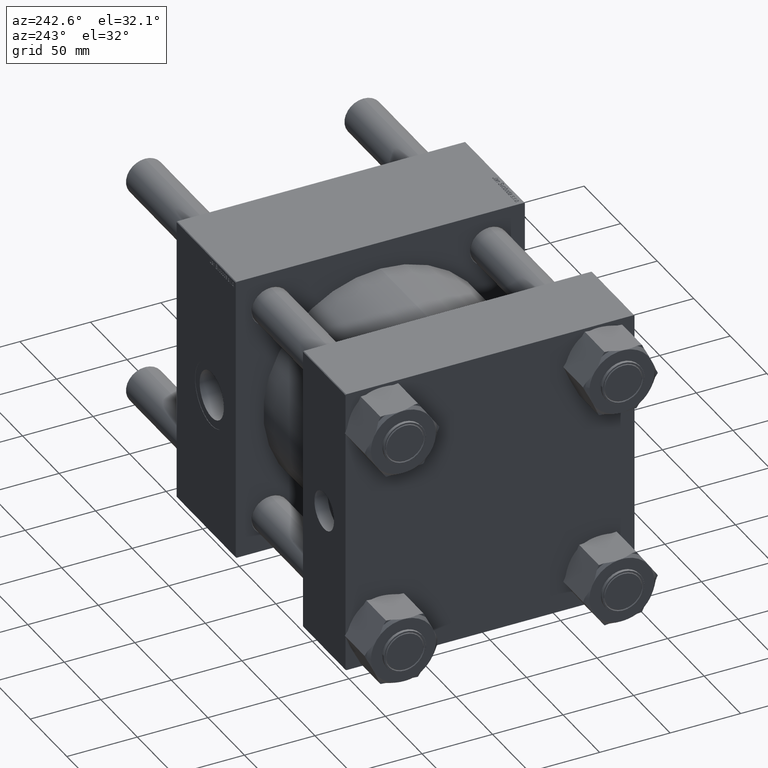
[diagram: clean part render]
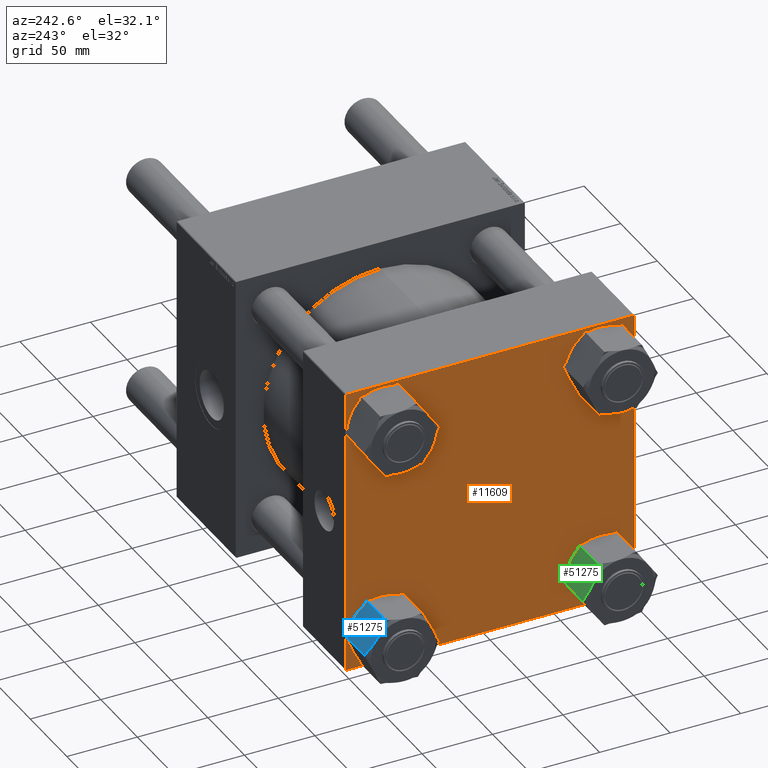
[diagram: same view with three faces highlighted in distinct colors, each labeled with its STEP entity id]
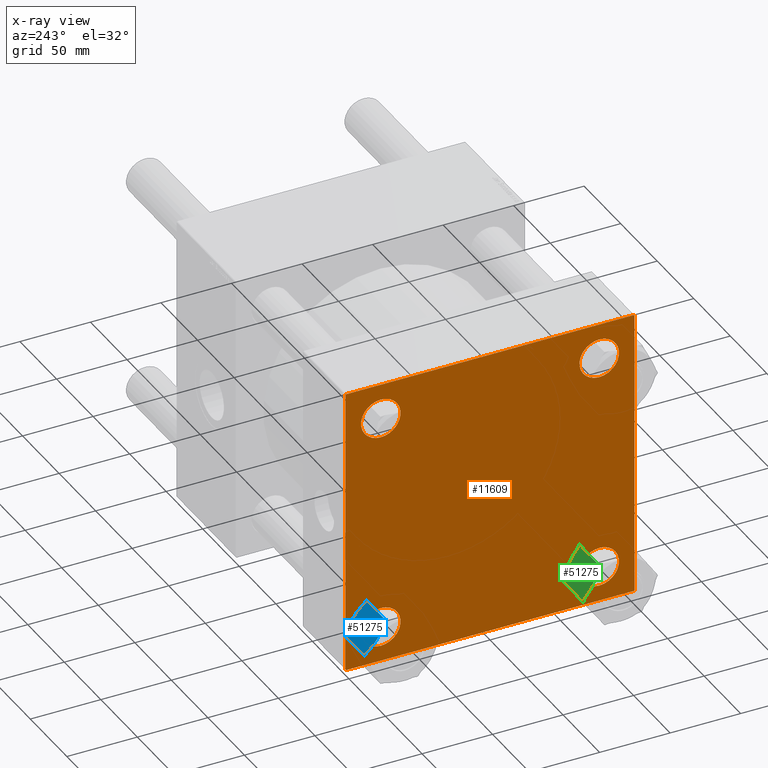
[diagram: x-ray of the same camera — body ghosted, the three highlighted faces saturated]
A machine part, auxiliary view with three faces highlighted in distinct colors.
The next image is the same camera in x-ray (body ghosted, the three faces saturated) — at least one of them is partly hidden behind the body in this view.
Their STEP definitions:

[orange] entity #11609 — the highlighted planar face has unit normal (-1, 0, 0).
#182 = EDGE_CURVE ( 'NONE', #53099, #46221, #29675, .T. ) ;
#638 = LINE ( 'NONE', #9306, #45542 ) ;
#746 = FACE_BOUND ( 'NONE', #27921, .T. ) ;
#882 = ORIENTED_EDGE ( 'NONE', *, *, #42398, .T. ) ;
#1178 = VERTEX_POINT ( 'NONE', #12070 ) ;
#1571 = DIRECTION ( 'NONE',  ( 0.000000000000000000, -1.000000000000000000, -1.353930517835556973E-16 ) ) ;
#1707 = CARTESIAN_POINT ( 'NONE',  ( 0.000000000000000000, 102.2500000000000000, -102.2500000000000000 ) ) ;
#1816 = FACE_BOUND ( 'NONE', #17439, .T. ) ;
#1959 = CARTESIAN_POINT ( 'NONE',  ( 0.000000000000000000, -102.4999999999999716, 102.5000000000000000 ) ) ;
#2163 = CARTESIAN_POINT ( 'NONE',  ( 0.000000000000000000, 77.44999999999998863, 77.45000000000001705 ) ) ;
#2212 = CIRCLE ( 'NONE', #15135, 14.00000000000012434 ) ;
#3226 = AXIS2_PLACEMENT_3D ( 'NONE', #46696, #46407, #15119 ) ;
#3310 = DIRECTION ( 'NONE',  ( 0.000000000000000000, 0.7071067811865474617, -0.7071067811865474617 ) ) ;
#3364 = CARTESIAN_POINT ( 'NONE',  ( 0.000000000000000000, 102.5000000000000284, 102.5000000000000284 ) ) ;
#3365 = VECTOR ( 'NONE', #19329, 1000.000000000000000 ) ;
#3877 = AXIS2_PLACEMENT_3D ( 'NONE', #31634, #32492, #53918 ) ;
#4187 = EDGE_CURVE ( 'NONE', #11656, #54490, #638, .T. ) ;
#4556 = EDGE_CURVE ( 'NONE', #35947, #8045, #49264, .T. ) ;
#4952 = DIRECTION ( 'NONE',  ( 0.000000000000000000, 0.000000000000000000, 1.000000000000000000 ) ) ;
#4974 = CIRCLE ( 'NONE', #36420, 14.00000000000012434 ) ;
#4982 = DIRECTION ( 'NONE',  ( 0.000000000000000000, -0.7071067811865474617, 0.7071067811865474617 ) ) ;
#5315 = VECTOR ( 'NONE', #1571, 1000.000000000000000 ) ;
#5443 = CARTESIAN_POINT ( 'NONE',  ( 0.000000000000000000, -77.44999999999996021, -63.44999999999991047 ) ) ;
#5625 = VECTOR ( 'NONE', #33362, 1000.000000000000114 ) ;
#6137 = AXIS2_PLACEMENT_3D ( 'NONE', #37854, #51731, #56051 ) ;
#6317 = DIRECTION ( 'NONE',  ( -0.000000000000000000, -0.7071067811865474617, -0.7071067811865474617 ) ) ;
#6920 = CIRCLE ( 'NONE', #12501, 14.00000000000012434 ) ;
#6991 = VERTEX_POINT ( 'NONE', #43489 ) ;
#7213 = EDGE_CURVE ( 'NONE', #46221, #45371, #42783, .T. ) ;
#7302 = EDGE_CURVE ( 'NONE', #43709, #15542, #4974, .T. ) ;
#7848 = EDGE_LOOP ( 'NONE', ( #37066, #44726 ) ) ;
#7965 = EDGE_CURVE ( 'NONE', #6991, #43921, #2212, .T. ) ;
#8045 = VERTEX_POINT ( 'NONE', #42017 ) ;
#8679 = CARTESIAN_POINT ( 'NONE',  ( 0.000000000000000000, 77.44999999999998863, -63.44999999999989626 ) ) ;
#9090 = ORIENTED_EDGE ( 'NONE', *, *, #182, .T. ) ;
#9306 = CARTESIAN_POINT ( 'NONE',  ( 0.000000000000000000, -102.2499999999999716, -102.2499999999999716 ) ) ;
#9419 = DIRECTION ( 'NONE',  ( 1.000000000000000000, -0.000000000000000000, -0.000000000000000000 ) ) ;
#9853 = CARTESIAN_POINT ( 'NONE',  ( 0.000000000000000000, -77.44999999999996021, -77.45000000000003126 ) ) ;
#10045 = ORIENTED_EDGE ( 'NONE', *, *, #17654, .F. ) ;
#11257 = ORIENTED_EDGE ( 'NONE', *, *, #7302, .T. ) ;
#11404 = VECTOR ( 'NONE', #21029, 1000.000000000000000 ) ;
#11609 = ADVANCED_FACE ( 'NONE', ( #19469, #746, #1816, #42355, #18118 ), #37154, .T. ) ;
#11656 = VERTEX_POINT ( 'NONE', #36091 ) ;
#11982 = VERTEX_POINT ( 'NONE', #27812 ) ;
#12070 = CARTESIAN_POINT ( 'NONE',  ( 0.000000000000000000, 102.0000000000000142, -102.4999999999999716 ) ) ;
#12302 = CARTESIAN_POINT ( 'NONE',  ( 0.000000000000000000, 102.5000000000000284, -101.9999999999999147 ) ) ;
#12501 = AXIS2_PLACEMENT_3D ( 'NONE', #2163, #41276, #41845 ) ;
#12967 = ORIENTED_EDGE ( 'NONE', *, *, #7965, .T. ) ;
#13487 = DIRECTION ( 'NONE',  ( 0.000000000000000000, 0.000000000000000000, 1.000000000000000000 ) ) ;
#14775 = EDGE_LOOP ( 'NONE', ( #34805, #26784, #882, #36635, #10045, #31569, #21947, #9090 ) ) ;
#15079 = EDGE_CURVE ( 'NONE', #43921, #6991, #18940, .T. ) ;
#15119 = DIRECTION ( 'NONE',  ( 0.000000000000000000, 0.000000000000000000, 1.000000000000000000 ) ) ;
#15135 = AXIS2_PLACEMENT_3D ( 'NONE', #9853, #23765, #4952 ) ;
#15450 = CARTESIAN_POINT ( 'NONE',  ( 0.000000000000000000, 77.44999999999998863, 63.44999999999989626 ) ) ;
#15542 = VERTEX_POINT ( 'NONE', #8679 ) ;
#15833 = CARTESIAN_POINT ( 'NONE',  ( 0.000000000000000000, 77.44999999999998863, 91.45000000000014495 ) ) ;
#16849 = CIRCLE ( 'NONE', #3877, 14.00000000000012434 ) ;
#17110 = EDGE_CURVE ( 'NONE', #8045, #35947, #57020, .T. ) ;
#17439 = EDGE_LOOP ( 'NONE', ( #24869, #11257 ) ) ;
#17654 = EDGE_CURVE ( 'NONE', #27236, #54490, #54648, .T. ) ;
#18118 = FACE_OUTER_BOUND ( 'NONE', #14775, .T. ) ;
#18438 = CARTESIAN_POINT ( 'NONE',  ( 0.000000000000000000, -102.4999999999999716, 102.0000000000000000 ) ) ;
#18490 = VECTOR ( 'NONE', #6317, 1000.000000000000114 ) ;
#18653 = LINE ( 'NONE', #41252, #5315 ) ;
#18940 = CIRCLE ( 'NONE', #19853, 14.00000000000012434 ) ;
#18947 = DIRECTION ( 'NONE',  ( 1.000000000000000000, -0.000000000000000000, -0.000000000000000000 ) ) ;
#19329 = DIRECTION ( 'NONE',  ( 0.000000000000000000, -1.353930517835556973E-16, -1.000000000000000000 ) ) ;
#19424 = DIRECTION ( 'NONE',  ( 1.000000000000000000, -0.000000000000000000, -0.000000000000000000 ) ) ;
#19469 = FACE_BOUND ( 'NONE', #47831, .T. ) ;
#19853 = AXIS2_PLACEMENT_3D ( 'NONE', #53988, #18947, #36638 ) ;
#21029 = DIRECTION ( 'NONE',  ( 0.000000000000000000, 0.000000000000000000, -1.000000000000000000 ) ) ;
#21378 = EDGE_CURVE ( 'NONE', #55271, #48485, #6920, .T. ) ;
#21947 = ORIENTED_EDGE ( 'NONE', *, *, #27585, .F. ) ;
#22103 = ORIENTED_EDGE ( 'NONE', *, *, #17110, .T. ) ;
#23765 = DIRECTION ( 'NONE',  ( 1.000000000000000000, -0.000000000000000000, -0.000000000000000000 ) ) ;
#24299 = DIRECTION ( 'NONE',  ( 0.000000000000000000, 0.000000000000000000, 1.000000000000000000 ) ) ;
#24392 = CARTESIAN_POINT ( 'NONE',  ( 0.000000000000000000, -102.2499999999999716, 102.2499999999999716 ) ) ;
#24869 = ORIENTED_EDGE ( 'NONE', *, *, #55485, .T. ) ;
#25230 = AXIS2_PLACEMENT_3D ( 'NONE', #32706, #50651, #24299 ) ;
#25332 = CARTESIAN_POINT ( 'NONE',  ( 0.000000000000000000, 102.2500000000000142, 102.2500000000000142 ) ) ;
#26047 = CARTESIAN_POINT ( 'NONE',  ( 0.000000000000000000, 102.0000000000000142, 102.5000000000000284 ) ) ;
#26709 = CARTESIAN_POINT ( 'NONE',  ( 0.000000000000000000, -102.5000000000000000, -101.9999999999998863 ) ) ;
#26784 = ORIENTED_EDGE ( 'NONE', *, *, #39746, .T. ) ;
#27236 = VERTEX_POINT ( 'NONE', #18438 ) ;
#27585 = EDGE_CURVE ( 'NONE', #53099, #11982, #18653, .T. ) ;
#27812 = CARTESIAN_POINT ( 'NONE',  ( 0.000000000000000000, -101.9999999999999147, 102.5000000000000000 ) ) ;
#27921 = EDGE_LOOP ( 'NONE', ( #37817, #12967 ) ) ;
#29675 = LINE ( 'NONE', #25332, #48228 ) ;
#29956 = ORIENTED_EDGE ( 'NONE', *, *, #4556, .T. ) ;
#31258 = CARTESIAN_POINT ( 'NONE',  ( 0.000000000000000000, 102.5000000000000284, -102.4999999999999716 ) ) ;
#31569 = ORIENTED_EDGE ( 'NONE', *, *, #48057, .T. ) ;
#31634 = CARTESIAN_POINT ( 'NONE',  ( 0.000000000000000000, 77.44999999999998863, -77.45000000000001705 ) ) ;
#32492 = DIRECTION ( 'NONE',  ( 1.000000000000000000, -0.000000000000000000, -0.000000000000000000 ) ) ;
#32706 = CARTESIAN_POINT ( 'NONE',  ( 0.000000000000000000, -77.44999999999996021, 77.45000000000003126 ) ) ;
#33362 = DIRECTION ( 'NONE',  ( -0.000000000000000000, 0.7071067811865474617, 0.7071067811865474617 ) ) ;
#34805 = ORIENTED_EDGE ( 'NONE', *, *, #7213, .T. ) ;
#35947 = VERTEX_POINT ( 'NONE', #39634 ) ;
#36091 = CARTESIAN_POINT ( 'NONE',  ( 0.000000000000000000, -101.9999999999999432, -102.5000000000000000 ) ) ;
#36420 = AXIS2_PLACEMENT_3D ( 'NONE', #53739, #9419, #13487 ) ;
#36635 = ORIENTED_EDGE ( 'NONE', *, *, #4187, .T. ) ;
#36638 = DIRECTION ( 'NONE',  ( 0.000000000000000000, 0.000000000000000000, 1.000000000000000000 ) ) ;
#36769 = LINE ( 'NONE', #31258, #41699 ) ;
#36837 = CARTESIAN_POINT ( 'NONE',  ( 0.000000000000000000, 77.44999999999998863, 77.45000000000001705 ) ) ;
#37066 = ORIENTED_EDGE ( 'NONE', *, *, #52308, .T. ) ;
#37154 = PLANE ( 'NONE',  #3226 ) ;
#37817 = ORIENTED_EDGE ( 'NONE', *, *, #15079, .T. ) ;
#37854 = CARTESIAN_POINT ( 'NONE',  ( 0.000000000000000000, -77.44999999999996021, 77.45000000000003126 ) ) ;
#39634 = CARTESIAN_POINT ( 'NONE',  ( 0.000000000000000000, -77.44999999999996021, 63.44999999999991047 ) ) ;
#39746 = EDGE_CURVE ( 'NONE', #45371, #1178, #41389, .T. ) ;
#40878 = DIRECTION ( 'NONE',  ( 0.000000000000000000, 0.000000000000000000, 1.000000000000000000 ) ) ;
#40950 = CIRCLE ( 'NONE', #52012, 14.00000000000012434 ) ;
#41252 = CARTESIAN_POINT ( 'NONE',  ( 0.000000000000000000, 102.5000000000000284, 102.5000000000000284 ) ) ;
#41276 = DIRECTION ( 'NONE',  ( 1.000000000000000000, -0.000000000000000000, -0.000000000000000000 ) ) ;
#41389 = LINE ( 'NONE', #1707, #18490 ) ;
#41699 = VECTOR ( 'NONE', #48924, 1000.000000000000000 ) ;
#41845 = DIRECTION ( 'NONE',  ( 0.000000000000000000, 0.000000000000000000, 1.000000000000000000 ) ) ;
#42017 = CARTESIAN_POINT ( 'NONE',  ( 0.000000000000000000, -77.44999999999996021, 91.45000000000015916 ) ) ;
#42355 = FACE_BOUND ( 'NONE', #7848, .T. ) ;
#42398 = EDGE_CURVE ( 'NONE', #1178, #11656, #36769, .T. ) ;
#42629 = LINE ( 'NONE', #24392, #5625 ) ;
#42783 = LINE ( 'NONE', #3364, #11404 ) ;
#43489 = CARTESIAN_POINT ( 'NONE',  ( 0.000000000000000000, -77.44999999999996021, -91.45000000000015916 ) ) ;
#43709 = VERTEX_POINT ( 'NONE', #45482 ) ;
#43921 = VERTEX_POINT ( 'NONE', #5443 ) ;
#44471 = CARTESIAN_POINT ( 'NONE',  ( 0.000000000000000000, 102.5000000000000284, 102.0000000000000142 ) ) ;
#44726 = ORIENTED_EDGE ( 'NONE', *, *, #21378, .T. ) ;
#45371 = VERTEX_POINT ( 'NONE', #12302 ) ;
#45482 = CARTESIAN_POINT ( 'NONE',  ( 0.000000000000000000, 77.44999999999998863, -91.45000000000014495 ) ) ;
#45542 = VECTOR ( 'NONE', #4982, 1000.000000000000114 ) ;
#46221 = VERTEX_POINT ( 'NONE', #44471 ) ;
#46407 = DIRECTION ( 'NONE',  ( -1.000000000000000000, 0.000000000000000000, 0.000000000000000000 ) ) ;
#46696 = CARTESIAN_POINT ( 'NONE',  ( 0.000000000000000000, 0.000000000000000000, 0.000000000000000000 ) ) ;
#47831 = EDGE_LOOP ( 'NONE', ( #22103, #29956 ) ) ;
#48057 = EDGE_CURVE ( 'NONE', #27236, #11982, #42629, .T. ) ;
#48228 = VECTOR ( 'NONE', #3310, 1000.000000000000114 ) ;
#48485 = VERTEX_POINT ( 'NONE', #15833 ) ;
#48924 = DIRECTION ( 'NONE',  ( 0.000000000000000000, -1.000000000000000000, -1.353930517835556727E-16 ) ) ;
#49264 = CIRCLE ( 'NONE', #25230, 14.00000000000012434 ) ;
#50651 = DIRECTION ( 'NONE',  ( 1.000000000000000000, -0.000000000000000000, -0.000000000000000000 ) ) ;
#51731 = DIRECTION ( 'NONE',  ( 1.000000000000000000, -0.000000000000000000, -0.000000000000000000 ) ) ;
#52012 = AXIS2_PLACEMENT_3D ( 'NONE', #36837, #19424, #40878 ) ;
#52308 = EDGE_CURVE ( 'NONE', #48485, #55271, #40950, .T. ) ;
#53099 = VERTEX_POINT ( 'NONE', #26047 ) ;
#53739 = CARTESIAN_POINT ( 'NONE',  ( 0.000000000000000000, 77.44999999999998863, -77.45000000000001705 ) ) ;
#53918 = DIRECTION ( 'NONE',  ( 0.000000000000000000, 0.000000000000000000, 1.000000000000000000 ) ) ;
#53988 = CARTESIAN_POINT ( 'NONE',  ( 0.000000000000000000, -77.44999999999996021, -77.45000000000003126 ) ) ;
#54490 = VERTEX_POINT ( 'NONE', #26709 ) ;
#54648 = LINE ( 'NONE', #1959, #3365 ) ;
#55271 = VERTEX_POINT ( 'NONE', #15450 ) ;
#55485 = EDGE_CURVE ( 'NONE', #15542, #43709, #16849, .T. ) ;
#56051 = DIRECTION ( 'NONE',  ( 0.000000000000000000, 0.000000000000000000, 1.000000000000000000 ) ) ;
#57020 = CIRCLE ( 'NONE', #6137, 14.00000000000012434 ) ;

[blue] entity #51275 — the highlighted planar face has unit normal (-0, -0.8198, -0.5726).
#153 = LINE ( 'NONE', #8552, #7084 ) ;
#231 = ORIENTED_EDGE ( 'NONE', *, *, #31329, .F. ) ;
#1495 = LINE ( 'NONE', #32195, #11988 ) ;
#2269 = VECTOR ( 'NONE', #38551, 1000.000000000000000 ) ;
#2427 = ORIENTED_EDGE ( 'NONE', *, *, #47066, .F. ) ;
#3409 = CARTESIAN_POINT ( 'NONE',  ( -24.86944657925254987, 3.032047466098102273, -28.99999999999999645 ) ) ;
#3425 = CARTESIAN_POINT ( 'NONE',  ( -15.06055342074746939, 20.02154878264365934, -2.000000000000000000 ) ) ;
#4291 = CARTESIAN_POINT ( 'NONE',  ( -18.28415441059626545, 14.43810808489622843, -0.2290702059543288927 ) ) ;
#4368 = VERTEX_POINT ( 'NONE', #55897 ) ;
#7084 = VECTOR ( 'NONE', #43337, 1000.000000000000000 ) ;
#7114 = VECTOR ( 'NONE', #38873, 1000.000000000000000 ) ;
#8059 = ORIENTED_EDGE ( 'NONE', *, *, #40260, .F. ) ;
#8552 = CARTESIAN_POINT ( 'NONE',  ( -13.30999999999999872, 23.05359624874177271, -31.00000000000000000 ) ) ;
#8721 = CARTESIAN_POINT ( 'NONE',  ( -19.96500000000001052, 11.52679812437088636, -31.00000000000000000 ) ) ;
#8726 = VECTOR ( 'NONE', #16842, 1000.000000000000000 ) ;
#9002 = CARTESIAN_POINT ( 'NONE',  ( -16.65815586667607207, 17.25442017599902655, -30.08229428973084651 ) ) ;
#9265 = ORIENTED_EDGE ( 'NONE', *, *, #51816, .F. ) ;
#9367 = ORIENTED_EDGE ( 'NONE', *, *, #38356, .F. ) ;
#9415 = VERTEX_POINT ( 'NONE', #39953 ) ;
#10190 = CARTESIAN_POINT ( 'NONE',  ( -24.86944657925254987, 3.032047466098102273, -28.99999999999999645 ) ) ;
#10730 = VERTEX_POINT ( 'NONE', #21581 ) ;
#10811 = EDGE_CURVE ( 'NONE', #34437, #33070, #48134, .T. ) ;
#10819 = B_SPLINE_CURVE_WITH_KNOTS ( 'NONE', 3,
 ( #3409, #29490, #47159, #43107, #50924, #38753, #41969, #46308, #37619, #55542 ),
 .UNSPECIFIED., .F., .F.,
 ( 4, 2, 2, 2, 4 ),
 ( 5.412492187535934886E-07, 0.005006446827219874531, 0.007509399616220437459, 0.008760876010720718490, 0.01001235240522100126 ),
 .UNSPECIFIED. ) ;
#11988 = VECTOR ( 'NONE', #49855, 1000.000000000000000 ) ;
#14182 = CARTESIAN_POINT ( 'NONE',  ( -21.64175213325208347, 8.622578237878784080, -0.1878618656617418170 ) ) ;
#16816 = AXIS2_PLACEMENT_3D ( 'NONE', #33961, #20905, #38587 ) ;
#16842 = DIRECTION ( 'NONE',  ( -0.000000000000000000, -0.000000000000000000, 1.000000000000000000 ) ) ;
#17161 = EDGE_CURVE ( 'NONE', #26188, #33555, #153, .T. ) ;
#17288 = CARTESIAN_POINT ( 'NONE',  ( -13.30999999999999872, 23.05359624874177271, -2.000000000000001776 ) ) ;
#17599 = CARTESIAN_POINT ( 'NONE',  ( -16.64769565855988276, 17.27253778791400052, -0.8826024950750006592 ) ) ;
#18243 = CARTESIAN_POINT ( 'NONE',  ( -19.96500000000001407, 11.52679812437088813, 0.000000000000000000 ) ) ;
#18548 = EDGE_CURVE ( 'NONE', #10730, #26188, #55056, .T. ) ;
#18828 = EDGE_CURVE ( 'NONE', #52322, #31118, #23313, .T. ) ;
#19445 = B_SPLINE_CURVE_WITH_KNOTS ( 'NONE', 3,
 ( #8721, #30468, #48133, #44086, #9002, #34814, #39154, #26689 ),
 .UNSPECIFIED., .F., .F.,
 ( 4, 2, 2, 4 ),
 ( 0.01001235240522100126, 0.01501505178013392769, 0.01751640146759038397, 0.02001775115504684371 ),
 .UNSPECIFIED. ) ;
#20873 = ORIENTED_EDGE ( 'NONE', *, *, #17161, .F. ) ;
#20905 = DIRECTION ( 'NONE',  ( 0.8660254037844385966, -0.5000000000000001110, 0.000000000000000000 ) ) ;
#20910 = LINE ( 'NONE', #21199, #7114 ) ;
#21199 = CARTESIAN_POINT ( 'NONE',  ( -26.62000000000000455, 1.322753825639812332E-14, -28.99999999999999645 ) ) ;
#21581 = CARTESIAN_POINT ( 'NONE',  ( -15.06055342074746584, 20.02154878264366644, -28.99999999999999645 ) ) ;
#22129 = CARTESIAN_POINT ( 'NONE',  ( -24.86944657925254631, 3.032047466098111155, -2.000000000000000000 ) ) ;
#23313 = B_SPLINE_CURVE_WITH_KNOTS ( 'NONE', 3,
 ( #18243, #40558, #14182, #36214, #31867, #49534, #27514, #45194 ),
 .UNSPECIFIED., .F., .F.,
 ( 4, 2, 2, 4 ),
 ( 0.01001235240522100993, 0.01501505178013393463, 0.01751640146759039091, 0.02001775115504685065 ),
 .UNSPECIFIED. ) ;
#24343 = CARTESIAN_POINT ( 'NONE',  ( -26.62000000000000455, 1.322753825639812332E-14, -2.000000000000001776 ) ) ;
#24778 = LINE ( 'NONE', #55168, #47351 ) ;
#24975 = FACE_OUTER_BOUND ( 'NONE', #36950, .T. ) ;
#26188 = VERTEX_POINT ( 'NONE', #36533 ) ;
#26596 = CARTESIAN_POINT ( 'NONE',  ( -19.96500000000001407, 11.52679812437088813, 0.000000000000000000 ) ) ;
#26689 = CARTESIAN_POINT ( 'NONE',  ( -15.06055342074746584, 20.02154878264366644, -28.99999999999999645 ) ) ;
#27514 = CARTESIAN_POINT ( 'NONE',  ( -24.47560625466582707, 3.714198918351719225, -1.691610128380186540 ) ) ;
#29490 = CARTESIAN_POINT ( 'NONE',  ( -24.08202856253745594, 4.395895477843756893, -29.61657409342405600 ) ) ;
#30308 = ORIENTED_EDGE ( 'NONE', *, *, #18828, .F. ) ;
#30468 = CARTESIAN_POINT ( 'NONE',  ( -19.11853726258805963, 12.99291459228222045, -31.00000000000002487 ) ) ;
#31118 = VERTEX_POINT ( 'NONE', #22129 ) ;
#31329 = EDGE_CURVE ( 'NONE', #34437, #47864, #20910, .T. ) ;
#31867 = CARTESIAN_POINT ( 'NONE',  ( -23.27184413332395252, 5.799176072742751487, -0.9177057102691522639 ) ) ;
#32195 = CARTESIAN_POINT ( 'NONE',  ( -26.62000000000000455, 1.322753825639812332E-14, -2.000000000000001776 ) ) ;
#32844 = EDGE_CURVE ( 'NONE', #4368, #10730, #19445, .T. ) ;
#33070 = VERTEX_POINT ( 'NONE', #24343 ) ;
#33370 = ORIENTED_EDGE ( 'NONE', *, *, #10811, .T. ) ;
#33555 = VERTEX_POINT ( 'NONE', #17288 ) ;
#33961 = CARTESIAN_POINT ( 'NONE',  ( -26.62000000000000455, 1.322753825639812332E-14, -31.00000000000000000 ) ) ;
#34437 = VERTEX_POINT ( 'NONE', #55809 ) ;
#34814 = CARTESIAN_POINT ( 'NONE',  ( -15.85409835805183931, 18.64708863314343645, -29.58973526236486862 ) ) ;
#36214 = CARTESIAN_POINT ( 'NONE',  ( -22.86684697778494524, 6.500651723057158549, -0.7059057375046260407 ) ) ;
#36533 = CARTESIAN_POINT ( 'NONE',  ( -13.30999999999999872, 23.05359624874177271, -28.99999999999999645 ) ) ;
#36950 = EDGE_LOOP ( 'NONE', ( #231, #33370, #9265, #30308, #2427, #8059, #20873, #51346, #51406, #9367 ) ) ;
#37619 = CARTESIAN_POINT ( 'NONE',  ( -20.17675130770547653, 11.16003410085586367, -31.00000000000001421 ) ) ;
#38356 = EDGE_CURVE ( 'NONE', #47864, #4368, #10819, .T. ) ;
#38551 = DIRECTION ( 'NONE',  ( 0.5000000000000001110, 0.8660254037844385966, 0.000000000000000000 ) ) ;
#38587 = DIRECTION ( 'NONE',  ( 0.5000000000000001110, 0.8660254037844385966, 0.000000000000000000 ) ) ;
#38753 = CARTESIAN_POINT ( 'NONE',  ( -21.02060996173662843, 9.698428037667218504, -30.90723860914735965 ) ) ;
#38873 = DIRECTION ( 'NONE',  ( 0.5000000000000001110, 0.8660254037844385966, 0.000000000000000000 ) ) ;
#39154 = CARTESIAN_POINT ( 'NONE',  ( -15.45439374533418864, 19.33939733039004238, -29.30838987161981635 ) ) ;
#39155 = CARTESIAN_POINT ( 'NONE',  ( -26.62000000000000455, 1.322753825639812332E-14, -31.00000000000000000 ) ) ;
#39636 = CARTESIAN_POINT ( 'NONE',  ( -17.87195049697045590, 15.15206620637487589, -0.3633963927283482831 ) ) ;
#39913 = CARTESIAN_POINT ( 'NONE',  ( -19.11895617587299867, 12.99218901318872810, -0.05818196640765550126 ) ) ;
#39953 = CARTESIAN_POINT ( 'NONE',  ( -15.06055342074746939, 20.02154878264365934, -2.000000000000000000 ) ) ;
#40260 = EDGE_CURVE ( 'NONE', #33555, #9415, #1495, .T. ) ;
#40558 = CARTESIAN_POINT ( 'NONE',  ( -20.81146273741195785, 10.06068165645955226, 1.890577538271597726E-14 ) ) ;
#41881 = DIRECTION ( 'NONE',  ( -0.5000000000000001110, -0.8660254037844385966, 0.000000000000000000 ) ) ;
#41969 = CARTESIAN_POINT ( 'NONE',  ( -20.81104382412701526, 10.06140723555304106, -30.94181803359234451 ) ) ;
#43107 = CARTESIAN_POINT ( 'NONE',  ( -22.05804950302956513, 7.901530042366891493, -30.63660360727163834 ) ) ;
#43124 = CARTESIAN_POINT ( 'NONE',  ( -18.90939003826338549, 13.35516821107455065, -0.09276139085263405970 ) ) ;
#43337 = DIRECTION ( 'NONE',  ( -0.000000000000000000, -0.000000000000000000, 1.000000000000000000 ) ) ;
#43989 = CARTESIAN_POINT ( 'NONE',  ( -19.54050862441265224, 12.26203875426299383, -0.01178697739765525998 ) ) ;
#44086 = CARTESIAN_POINT ( 'NONE',  ( -17.06315302221505448, 16.55294452568460883, -30.29409426249536352 ) ) ;
#45194 = CARTESIAN_POINT ( 'NONE',  ( -24.86944657925254631, 3.032047466098111155, -2.000000000000000000 ) ) ;
#46308 = CARTESIAN_POINT ( 'NONE',  ( -20.38949137558736524, 10.79155749447877177, -30.98821302260233779 ) ) ;
#46365 = CARTESIAN_POINT ( 'NONE',  ( -19.96500000000001407, 11.52679812437088813, 0.000000000000000000 ) ) ;
#47066 = EDGE_CURVE ( 'NONE', #9415, #52322, #47129, .T. ) ;
#47129 = B_SPLINE_CURVE_WITH_KNOTS ( 'NONE', 3,
 ( #3425, #52379, #17599, #39636, #4291, #43124, #39913, #43989, #53230, #26596 ),
 .UNSPECIFIED., .F., .F.,
 ( 4, 2, 2, 2, 4 ),
 ( 5.412492187693073262E-07, 0.005006446827219892745, 0.007509399616220453939, 0.008760876010720730633, 0.01001235240522100993 ),
 .UNSPECIFIED. ) ;
#47159 = CARTESIAN_POINT ( 'NONE',  ( -23.28230434144012762, 5.781058460827763312, -30.11739750492498402 ) ) ;
#47351 = VECTOR ( 'NONE', #41881, 1000.000000000000000 ) ;
#47864 = VERTEX_POINT ( 'NONE', #10190 ) ;
#48133 = CARTESIAN_POINT ( 'NONE',  ( -18.28824786674792691, 14.43101801086298330, -30.81213813433825166 ) ) ;
#48134 = LINE ( 'NONE', #39155, #8726 ) ;
#49534 = CARTESIAN_POINT ( 'NONE',  ( -24.07590164194817106, 4.406507615598335370, -1.410264737635125831 ) ) ;
#49855 = DIRECTION ( 'NONE',  ( -0.5000000000000001110, -0.8660254037844385966, 0.000000000000000000 ) ) ;
#50924 = CARTESIAN_POINT ( 'NONE',  ( -21.64584558940375913, 8.615488163845546055, -30.77092979404567430 ) ) ;
#51275 = ADVANCED_FACE ( 'NONE', ( #24975 ), #55942, .F. ) ;
#51346 = ORIENTED_EDGE ( 'NONE', *, *, #18548, .F. ) ;
#51406 = ORIENTED_EDGE ( 'NONE', *, *, #32844, .F. ) ;
#51583 = CARTESIAN_POINT ( 'NONE',  ( -26.62000000000000455, 1.322753825639812332E-14, -28.99999999999999645 ) ) ;
#51816 = EDGE_CURVE ( 'NONE', #31118, #33070, #24778, .T. ) ;
#52322 = VERTEX_POINT ( 'NONE', #46365 ) ;
#52379 = CARTESIAN_POINT ( 'NONE',  ( -15.84797143746255443, 18.65770077089800694, -1.383425906575934228 ) ) ;
#53230 = CARTESIAN_POINT ( 'NONE',  ( -19.75324869229453739, 11.89356214788591259, 1.924835315249438913E-14 ) ) ;
#55056 = LINE ( 'NONE', #51583, #2269 ) ;
#55168 = CARTESIAN_POINT ( 'NONE',  ( -26.62000000000000455, 1.322753825639812332E-14, -2.000000000000001776 ) ) ;
#55542 = CARTESIAN_POINT ( 'NONE',  ( -19.96500000000001052, 11.52679812437088636, -31.00000000000000000 ) ) ;
#55809 = CARTESIAN_POINT ( 'NONE',  ( -26.62000000000000455, 1.322753825639812332E-14, -28.99999999999999645 ) ) ;
#55897 = CARTESIAN_POINT ( 'NONE',  ( -19.96500000000001052, 11.52679812437088636, -31.00000000000000000 ) ) ;
#55942 = PLANE ( 'NONE',  #16816 ) ;

[green] entity #51275 — the highlighted planar face has unit normal (0, -0.9058, -0.4237).
#153 = LINE ( 'NONE', #8552, #7084 ) ;
#231 = ORIENTED_EDGE ( 'NONE', *, *, #31329, .F. ) ;
#1495 = LINE ( 'NONE', #32195, #11988 ) ;
#2269 = VECTOR ( 'NONE', #38551, 1000.000000000000000 ) ;
#2427 = ORIENTED_EDGE ( 'NONE', *, *, #47066, .F. ) ;
#3409 = CARTESIAN_POINT ( 'NONE',  ( -24.86944657925254987, 3.032047466098102273, -28.99999999999999645 ) ) ;
#3425 = CARTESIAN_POINT ( 'NONE',  ( -15.06055342074746939, 20.02154878264365934, -2.000000000000000000 ) ) ;
#4291 = CARTESIAN_POINT ( 'NONE',  ( -18.28415441059626545, 14.43810808489622843, -0.2290702059543288927 ) ) ;
#4368 = VERTEX_POINT ( 'NONE', #55897 ) ;
#7084 = VECTOR ( 'NONE', #43337, 1000.000000000000000 ) ;
#7114 = VECTOR ( 'NONE', #38873, 1000.000000000000000 ) ;
#8059 = ORIENTED_EDGE ( 'NONE', *, *, #40260, .F. ) ;
#8552 = CARTESIAN_POINT ( 'NONE',  ( -13.30999999999999872, 23.05359624874177271, -31.00000000000000000 ) ) ;
#8721 = CARTESIAN_POINT ( 'NONE',  ( -19.96500000000001052, 11.52679812437088636, -31.00000000000000000 ) ) ;
#8726 = VECTOR ( 'NONE', #16842, 1000.000000000000000 ) ;
#9002 = CARTESIAN_POINT ( 'NONE',  ( -16.65815586667607207, 17.25442017599902655, -30.08229428973084651 ) ) ;
#9265 = ORIENTED_EDGE ( 'NONE', *, *, #51816, .F. ) ;
#9367 = ORIENTED_EDGE ( 'NONE', *, *, #38356, .F. ) ;
#9415 = VERTEX_POINT ( 'NONE', #39953 ) ;
#10190 = CARTESIAN_POINT ( 'NONE',  ( -24.86944657925254987, 3.032047466098102273, -28.99999999999999645 ) ) ;
#10730 = VERTEX_POINT ( 'NONE', #21581 ) ;
#10811 = EDGE_CURVE ( 'NONE', #34437, #33070, #48134, .T. ) ;
#10819 = B_SPLINE_CURVE_WITH_KNOTS ( 'NONE', 3,
 ( #3409, #29490, #47159, #43107, #50924, #38753, #41969, #46308, #37619, #55542 ),
 .UNSPECIFIED., .F., .F.,
 ( 4, 2, 2, 2, 4 ),
 ( 5.412492187535934886E-07, 0.005006446827219874531, 0.007509399616220437459, 0.008760876010720718490, 0.01001235240522100126 ),
 .UNSPECIFIED. ) ;
#11988 = VECTOR ( 'NONE', #49855, 1000.000000000000000 ) ;
#14182 = CARTESIAN_POINT ( 'NONE',  ( -21.64175213325208347, 8.622578237878784080, -0.1878618656617418170 ) ) ;
#16816 = AXIS2_PLACEMENT_3D ( 'NONE', #33961, #20905, #38587 ) ;
#16842 = DIRECTION ( 'NONE',  ( -0.000000000000000000, -0.000000000000000000, 1.000000000000000000 ) ) ;
#17161 = EDGE_CURVE ( 'NONE', #26188, #33555, #153, .T. ) ;
#17288 = CARTESIAN_POINT ( 'NONE',  ( -13.30999999999999872, 23.05359624874177271, -2.000000000000001776 ) ) ;
#17599 = CARTESIAN_POINT ( 'NONE',  ( -16.64769565855988276, 17.27253778791400052, -0.8826024950750006592 ) ) ;
#18243 = CARTESIAN_POINT ( 'NONE',  ( -19.96500000000001407, 11.52679812437088813, 0.000000000000000000 ) ) ;
#18548 = EDGE_CURVE ( 'NONE', #10730, #26188, #55056, .T. ) ;
#18828 = EDGE_CURVE ( 'NONE', #52322, #31118, #23313, .T. ) ;
#19445 = B_SPLINE_CURVE_WITH_KNOTS ( 'NONE', 3,
 ( #8721, #30468, #48133, #44086, #9002, #34814, #39154, #26689 ),
 .UNSPECIFIED., .F., .F.,
 ( 4, 2, 2, 4 ),
 ( 0.01001235240522100126, 0.01501505178013392769, 0.01751640146759038397, 0.02001775115504684371 ),
 .UNSPECIFIED. ) ;
#20873 = ORIENTED_EDGE ( 'NONE', *, *, #17161, .F. ) ;
#20905 = DIRECTION ( 'NONE',  ( 0.8660254037844385966, -0.5000000000000001110, 0.000000000000000000 ) ) ;
#20910 = LINE ( 'NONE', #21199, #7114 ) ;
#21199 = CARTESIAN_POINT ( 'NONE',  ( -26.62000000000000455, 1.322753825639812332E-14, -28.99999999999999645 ) ) ;
#21581 = CARTESIAN_POINT ( 'NONE',  ( -15.06055342074746584, 20.02154878264366644, -28.99999999999999645 ) ) ;
#22129 = CARTESIAN_POINT ( 'NONE',  ( -24.86944657925254631, 3.032047466098111155, -2.000000000000000000 ) ) ;
#23313 = B_SPLINE_CURVE_WITH_KNOTS ( 'NONE', 3,
 ( #18243, #40558, #14182, #36214, #31867, #49534, #27514, #45194 ),
 .UNSPECIFIED., .F., .F.,
 ( 4, 2, 2, 4 ),
 ( 0.01001235240522100993, 0.01501505178013393463, 0.01751640146759039091, 0.02001775115504685065 ),
 .UNSPECIFIED. ) ;
#24343 = CARTESIAN_POINT ( 'NONE',  ( -26.62000000000000455, 1.322753825639812332E-14, -2.000000000000001776 ) ) ;
#24778 = LINE ( 'NONE', #55168, #47351 ) ;
#24975 = FACE_OUTER_BOUND ( 'NONE', #36950, .T. ) ;
#26188 = VERTEX_POINT ( 'NONE', #36533 ) ;
#26596 = CARTESIAN_POINT ( 'NONE',  ( -19.96500000000001407, 11.52679812437088813, 0.000000000000000000 ) ) ;
#26689 = CARTESIAN_POINT ( 'NONE',  ( -15.06055342074746584, 20.02154878264366644, -28.99999999999999645 ) ) ;
#27514 = CARTESIAN_POINT ( 'NONE',  ( -24.47560625466582707, 3.714198918351719225, -1.691610128380186540 ) ) ;
#29490 = CARTESIAN_POINT ( 'NONE',  ( -24.08202856253745594, 4.395895477843756893, -29.61657409342405600 ) ) ;
#30308 = ORIENTED_EDGE ( 'NONE', *, *, #18828, .F. ) ;
#30468 = CARTESIAN_POINT ( 'NONE',  ( -19.11853726258805963, 12.99291459228222045, -31.00000000000002487 ) ) ;
#31118 = VERTEX_POINT ( 'NONE', #22129 ) ;
#31329 = EDGE_CURVE ( 'NONE', #34437, #47864, #20910, .T. ) ;
#31867 = CARTESIAN_POINT ( 'NONE',  ( -23.27184413332395252, 5.799176072742751487, -0.9177057102691522639 ) ) ;
#32195 = CARTESIAN_POINT ( 'NONE',  ( -26.62000000000000455, 1.322753825639812332E-14, -2.000000000000001776 ) ) ;
#32844 = EDGE_CURVE ( 'NONE', #4368, #10730, #19445, .T. ) ;
#33070 = VERTEX_POINT ( 'NONE', #24343 ) ;
#33370 = ORIENTED_EDGE ( 'NONE', *, *, #10811, .T. ) ;
#33555 = VERTEX_POINT ( 'NONE', #17288 ) ;
#33961 = CARTESIAN_POINT ( 'NONE',  ( -26.62000000000000455, 1.322753825639812332E-14, -31.00000000000000000 ) ) ;
#34437 = VERTEX_POINT ( 'NONE', #55809 ) ;
#34814 = CARTESIAN_POINT ( 'NONE',  ( -15.85409835805183931, 18.64708863314343645, -29.58973526236486862 ) ) ;
#36214 = CARTESIAN_POINT ( 'NONE',  ( -22.86684697778494524, 6.500651723057158549, -0.7059057375046260407 ) ) ;
#36533 = CARTESIAN_POINT ( 'NONE',  ( -13.30999999999999872, 23.05359624874177271, -28.99999999999999645 ) ) ;
#36950 = EDGE_LOOP ( 'NONE', ( #231, #33370, #9265, #30308, #2427, #8059, #20873, #51346, #51406, #9367 ) ) ;
#37619 = CARTESIAN_POINT ( 'NONE',  ( -20.17675130770547653, 11.16003410085586367, -31.00000000000001421 ) ) ;
#38356 = EDGE_CURVE ( 'NONE', #47864, #4368, #10819, .T. ) ;
#38551 = DIRECTION ( 'NONE',  ( 0.5000000000000001110, 0.8660254037844385966, 0.000000000000000000 ) ) ;
#38587 = DIRECTION ( 'NONE',  ( 0.5000000000000001110, 0.8660254037844385966, 0.000000000000000000 ) ) ;
#38753 = CARTESIAN_POINT ( 'NONE',  ( -21.02060996173662843, 9.698428037667218504, -30.90723860914735965 ) ) ;
#38873 = DIRECTION ( 'NONE',  ( 0.5000000000000001110, 0.8660254037844385966, 0.000000000000000000 ) ) ;
#39154 = CARTESIAN_POINT ( 'NONE',  ( -15.45439374533418864, 19.33939733039004238, -29.30838987161981635 ) ) ;
#39155 = CARTESIAN_POINT ( 'NONE',  ( -26.62000000000000455, 1.322753825639812332E-14, -31.00000000000000000 ) ) ;
#39636 = CARTESIAN_POINT ( 'NONE',  ( -17.87195049697045590, 15.15206620637487589, -0.3633963927283482831 ) ) ;
#39913 = CARTESIAN_POINT ( 'NONE',  ( -19.11895617587299867, 12.99218901318872810, -0.05818196640765550126 ) ) ;
#39953 = CARTESIAN_POINT ( 'NONE',  ( -15.06055342074746939, 20.02154878264365934, -2.000000000000000000 ) ) ;
#40260 = EDGE_CURVE ( 'NONE', #33555, #9415, #1495, .T. ) ;
#40558 = CARTESIAN_POINT ( 'NONE',  ( -20.81146273741195785, 10.06068165645955226, 1.890577538271597726E-14 ) ) ;
#41881 = DIRECTION ( 'NONE',  ( -0.5000000000000001110, -0.8660254037844385966, 0.000000000000000000 ) ) ;
#41969 = CARTESIAN_POINT ( 'NONE',  ( -20.81104382412701526, 10.06140723555304106, -30.94181803359234451 ) ) ;
#43107 = CARTESIAN_POINT ( 'NONE',  ( -22.05804950302956513, 7.901530042366891493, -30.63660360727163834 ) ) ;
#43124 = CARTESIAN_POINT ( 'NONE',  ( -18.90939003826338549, 13.35516821107455065, -0.09276139085263405970 ) ) ;
#43337 = DIRECTION ( 'NONE',  ( -0.000000000000000000, -0.000000000000000000, 1.000000000000000000 ) ) ;
#43989 = CARTESIAN_POINT ( 'NONE',  ( -19.54050862441265224, 12.26203875426299383, -0.01178697739765525998 ) ) ;
#44086 = CARTESIAN_POINT ( 'NONE',  ( -17.06315302221505448, 16.55294452568460883, -30.29409426249536352 ) ) ;
#45194 = CARTESIAN_POINT ( 'NONE',  ( -24.86944657925254631, 3.032047466098111155, -2.000000000000000000 ) ) ;
#46308 = CARTESIAN_POINT ( 'NONE',  ( -20.38949137558736524, 10.79155749447877177, -30.98821302260233779 ) ) ;
#46365 = CARTESIAN_POINT ( 'NONE',  ( -19.96500000000001407, 11.52679812437088813, 0.000000000000000000 ) ) ;
#47066 = EDGE_CURVE ( 'NONE', #9415, #52322, #47129, .T. ) ;
#47129 = B_SPLINE_CURVE_WITH_KNOTS ( 'NONE', 3,
 ( #3425, #52379, #17599, #39636, #4291, #43124, #39913, #43989, #53230, #26596 ),
 .UNSPECIFIED., .F., .F.,
 ( 4, 2, 2, 2, 4 ),
 ( 5.412492187693073262E-07, 0.005006446827219892745, 0.007509399616220453939, 0.008760876010720730633, 0.01001235240522100993 ),
 .UNSPECIFIED. ) ;
#47159 = CARTESIAN_POINT ( 'NONE',  ( -23.28230434144012762, 5.781058460827763312, -30.11739750492498402 ) ) ;
#47351 = VECTOR ( 'NONE', #41881, 1000.000000000000000 ) ;
#47864 = VERTEX_POINT ( 'NONE', #10190 ) ;
#48133 = CARTESIAN_POINT ( 'NONE',  ( -18.28824786674792691, 14.43101801086298330, -30.81213813433825166 ) ) ;
#48134 = LINE ( 'NONE', #39155, #8726 ) ;
#49534 = CARTESIAN_POINT ( 'NONE',  ( -24.07590164194817106, 4.406507615598335370, -1.410264737635125831 ) ) ;
#49855 = DIRECTION ( 'NONE',  ( -0.5000000000000001110, -0.8660254037844385966, 0.000000000000000000 ) ) ;
#50924 = CARTESIAN_POINT ( 'NONE',  ( -21.64584558940375913, 8.615488163845546055, -30.77092979404567430 ) ) ;
#51275 = ADVANCED_FACE ( 'NONE', ( #24975 ), #55942, .F. ) ;
#51346 = ORIENTED_EDGE ( 'NONE', *, *, #18548, .F. ) ;
#51406 = ORIENTED_EDGE ( 'NONE', *, *, #32844, .F. ) ;
#51583 = CARTESIAN_POINT ( 'NONE',  ( -26.62000000000000455, 1.322753825639812332E-14, -28.99999999999999645 ) ) ;
#51816 = EDGE_CURVE ( 'NONE', #31118, #33070, #24778, .T. ) ;
#52322 = VERTEX_POINT ( 'NONE', #46365 ) ;
#52379 = CARTESIAN_POINT ( 'NONE',  ( -15.84797143746255443, 18.65770077089800694, -1.383425906575934228 ) ) ;
#53230 = CARTESIAN_POINT ( 'NONE',  ( -19.75324869229453739, 11.89356214788591259, 1.924835315249438913E-14 ) ) ;
#55056 = LINE ( 'NONE', #51583, #2269 ) ;
#55168 = CARTESIAN_POINT ( 'NONE',  ( -26.62000000000000455, 1.322753825639812332E-14, -2.000000000000001776 ) ) ;
#55542 = CARTESIAN_POINT ( 'NONE',  ( -19.96500000000001052, 11.52679812437088636, -31.00000000000000000 ) ) ;
#55809 = CARTESIAN_POINT ( 'NONE',  ( -26.62000000000000455, 1.322753825639812332E-14, -28.99999999999999645 ) ) ;
#55897 = CARTESIAN_POINT ( 'NONE',  ( -19.96500000000001052, 11.52679812437088636, -31.00000000000000000 ) ) ;
#55942 = PLANE ( 'NONE',  #16816 ) ;